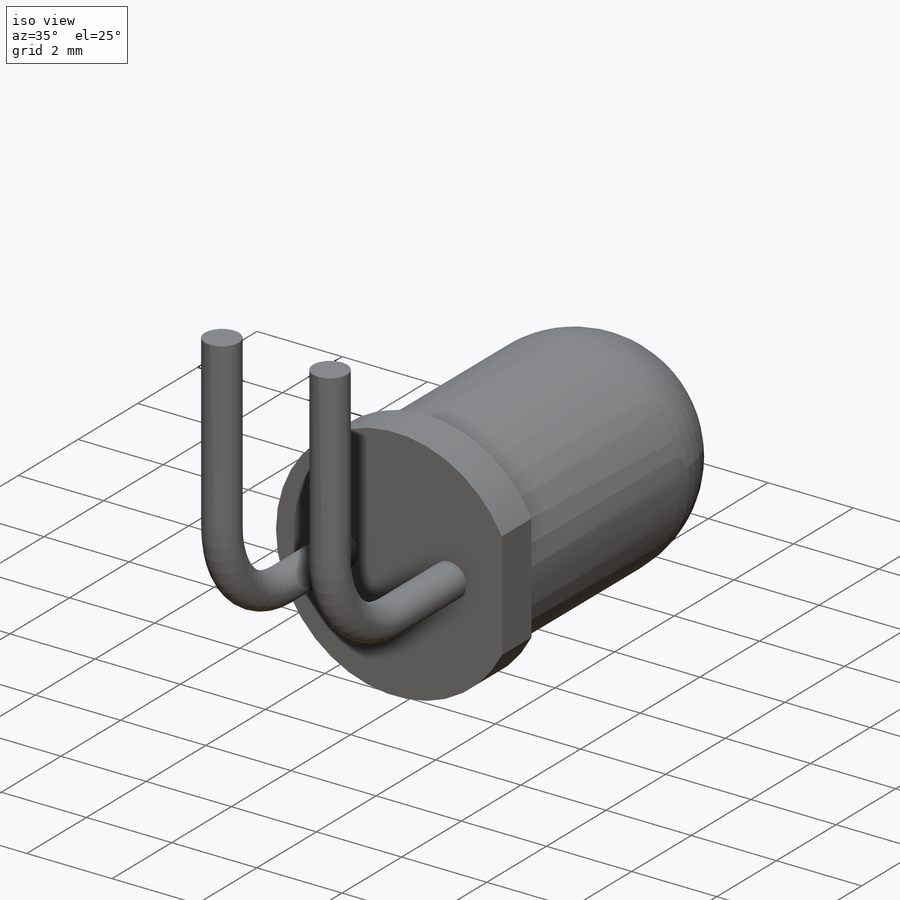
[diagram: iso view]
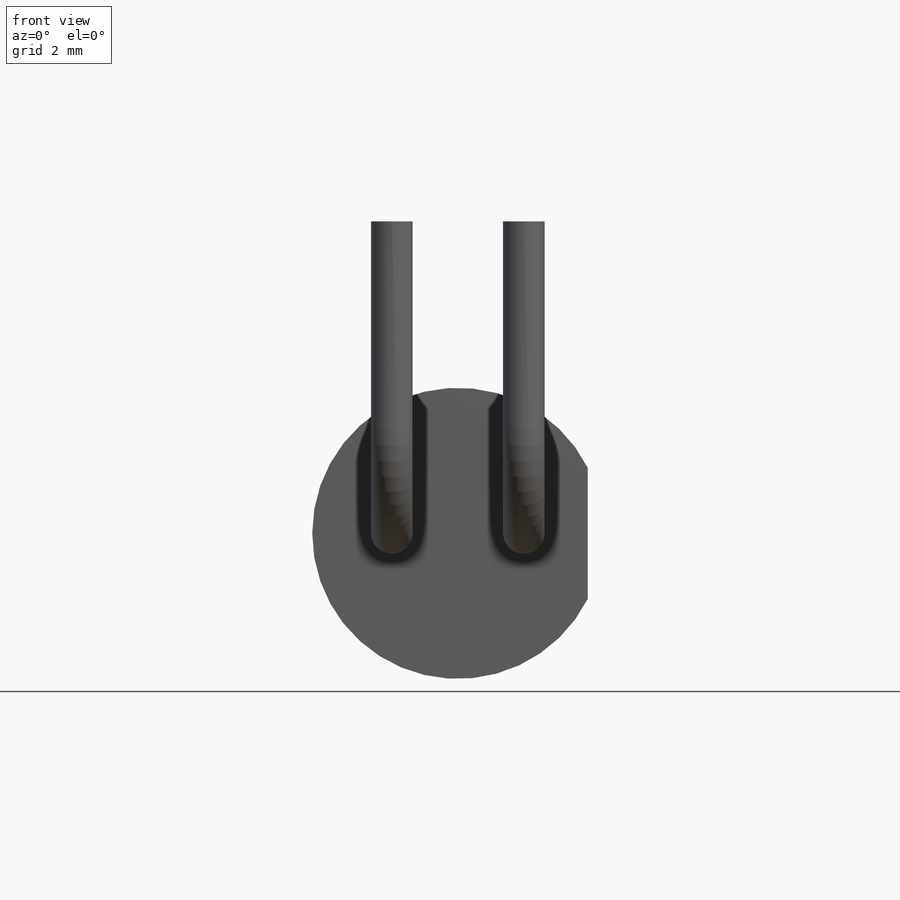
[diagram: front view]
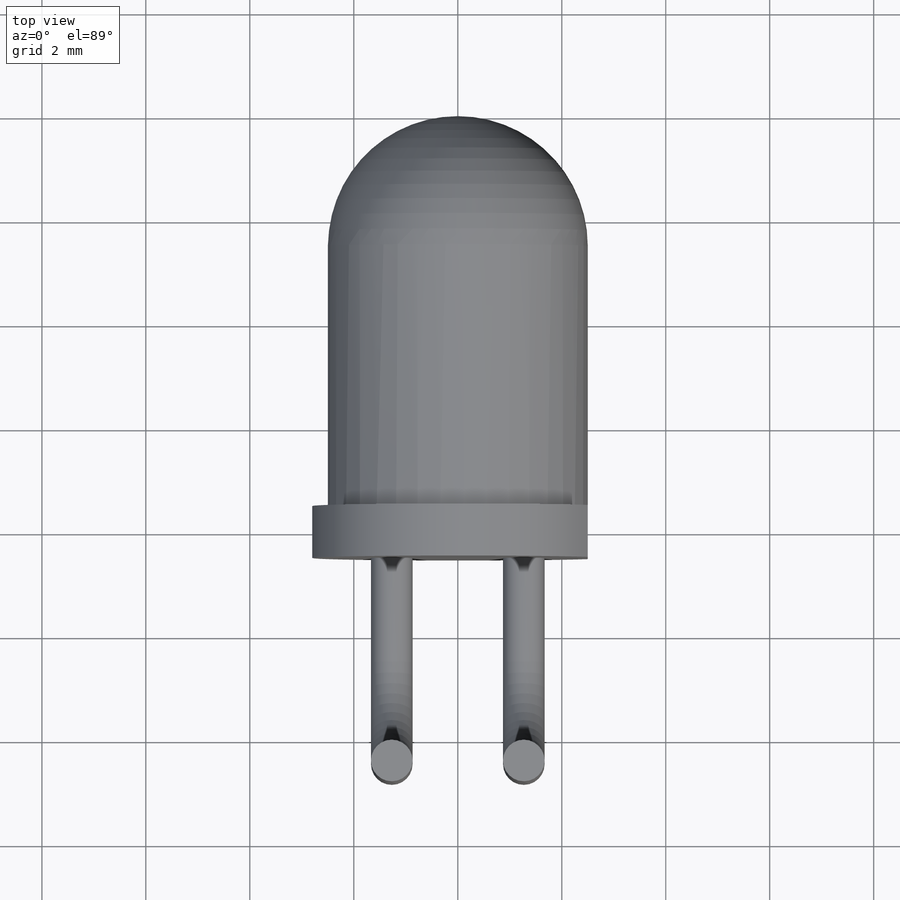
[diagram: top view]
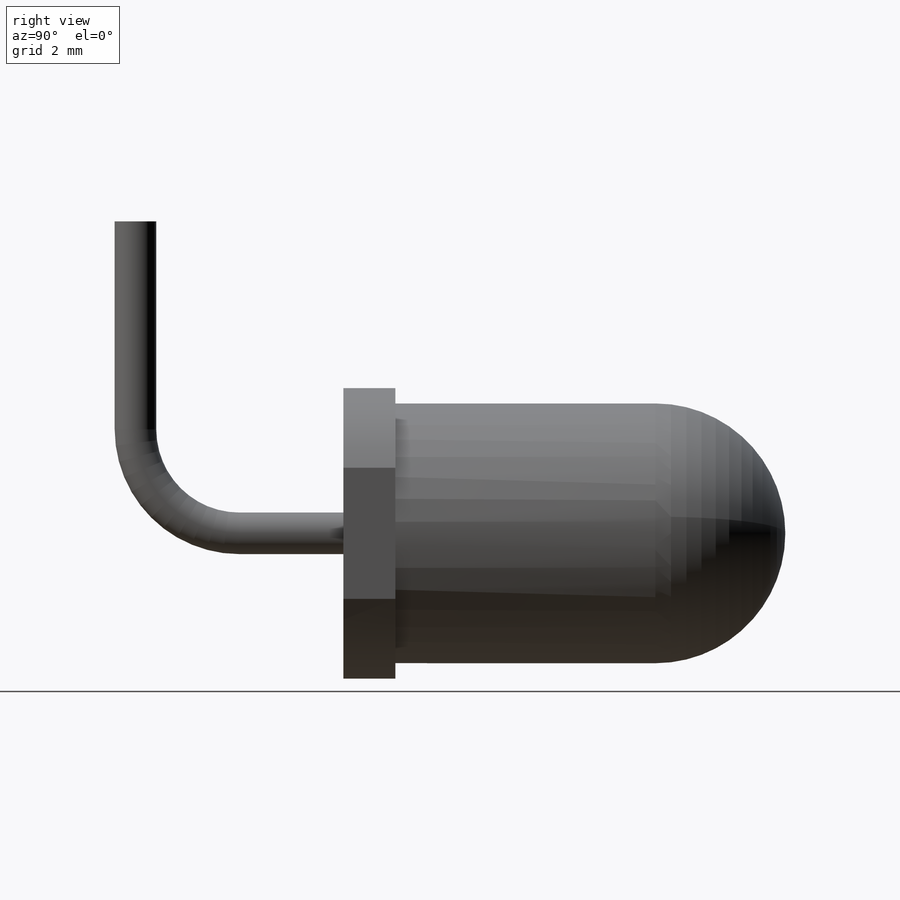
[diagram: right view]
SOLIDWORKS PART (.sldprt)
format: sldprt  version: not decoded by parser v0  size: 219,648 bytes
history: native  units: mm
features: plane x5, sketch x4, extrude x2, material x1, fillet x1, sweep x1, mirror x1 (+8 scaffold rows collapsed)
feature tree (23):
  scaffold x8  (default folders/planes/origin — collapsed)
  material  "Matériau <non spécifié>"
  plane  "Face"
  plane  "Dessus"
  plane  "Droite"
  sketch  "Esquisse1"  dims[D1=~11.096953mm]
  extrude  "Base-Extrusion"  Depth=8.5mm
  sketch  "Esquisse2"  dims[D1=~2.632515mm]
  extrude  "Boss.-Extru.1"  Depth=1mm
  fillet  "Congé1"  Radius=2.5mm
  sketch  "Esquisse3"  dims[D2=0.3mm D1=1.27mm]
  plane  "Plan1"  Offset=1.27mm
  sketch  "Esquisse5"  dims[D3=2.0mm D1=4.0mm D2=6.0mm]
  plane  "Plan2"  Offset=0mm
  sweep  "Balayage1"
  mirror  "Symétrie1"
decode coverage: 7 of 9 modeling features carry decoded parameters
note: ~ marks probable driven/reference dimensions
note: suppression state not decoded; provenance and decode notes live in map.json
